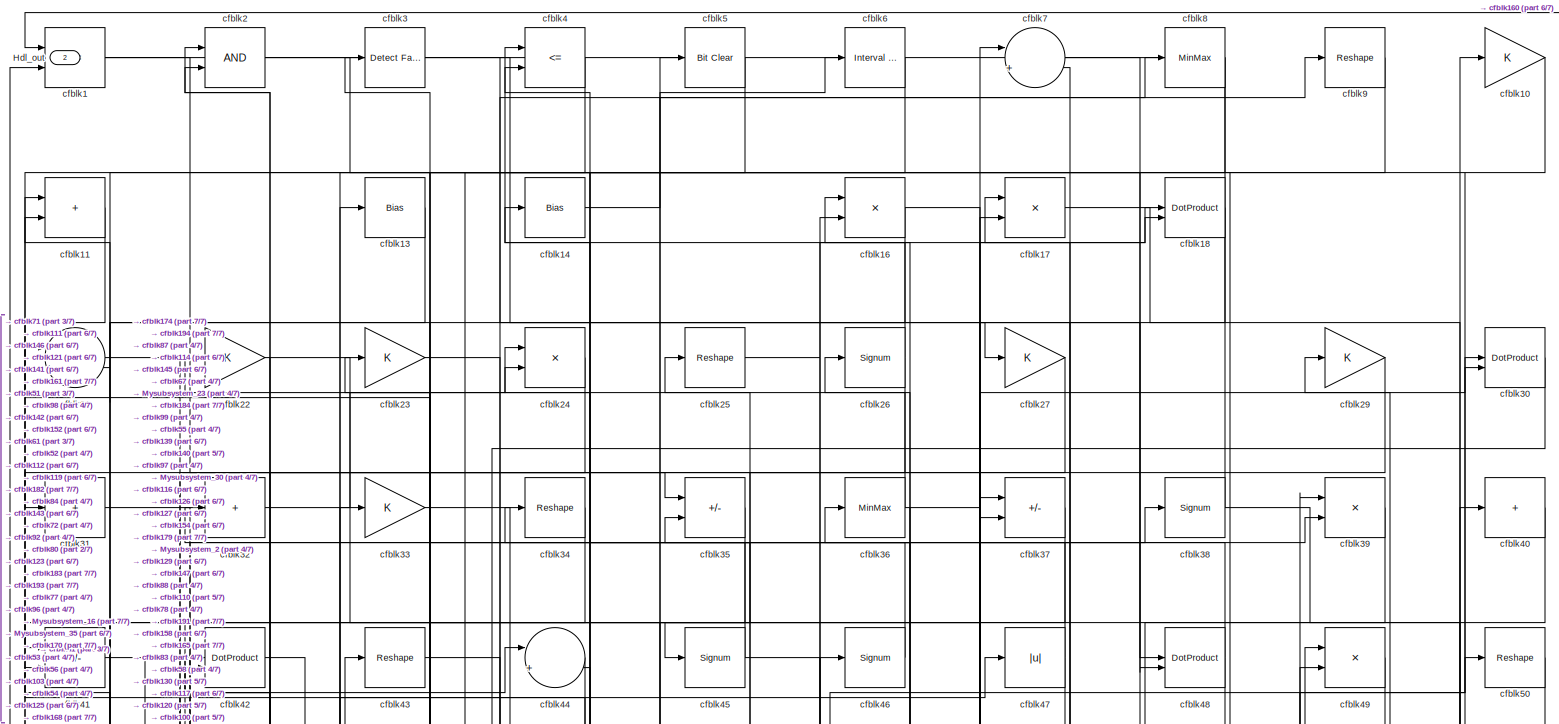
[diagram: root canvas - part 1/7, full width, top band]
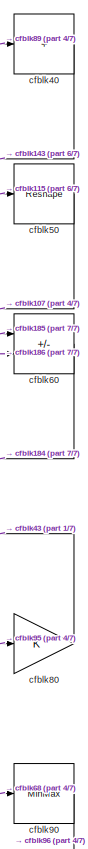
[diagram: root canvas - part 2/7, top right region]
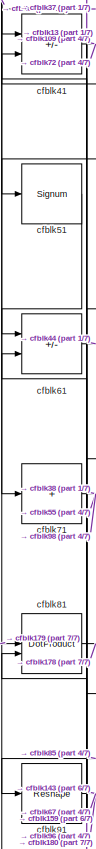
[diagram: root canvas - part 3/7, middle left region]
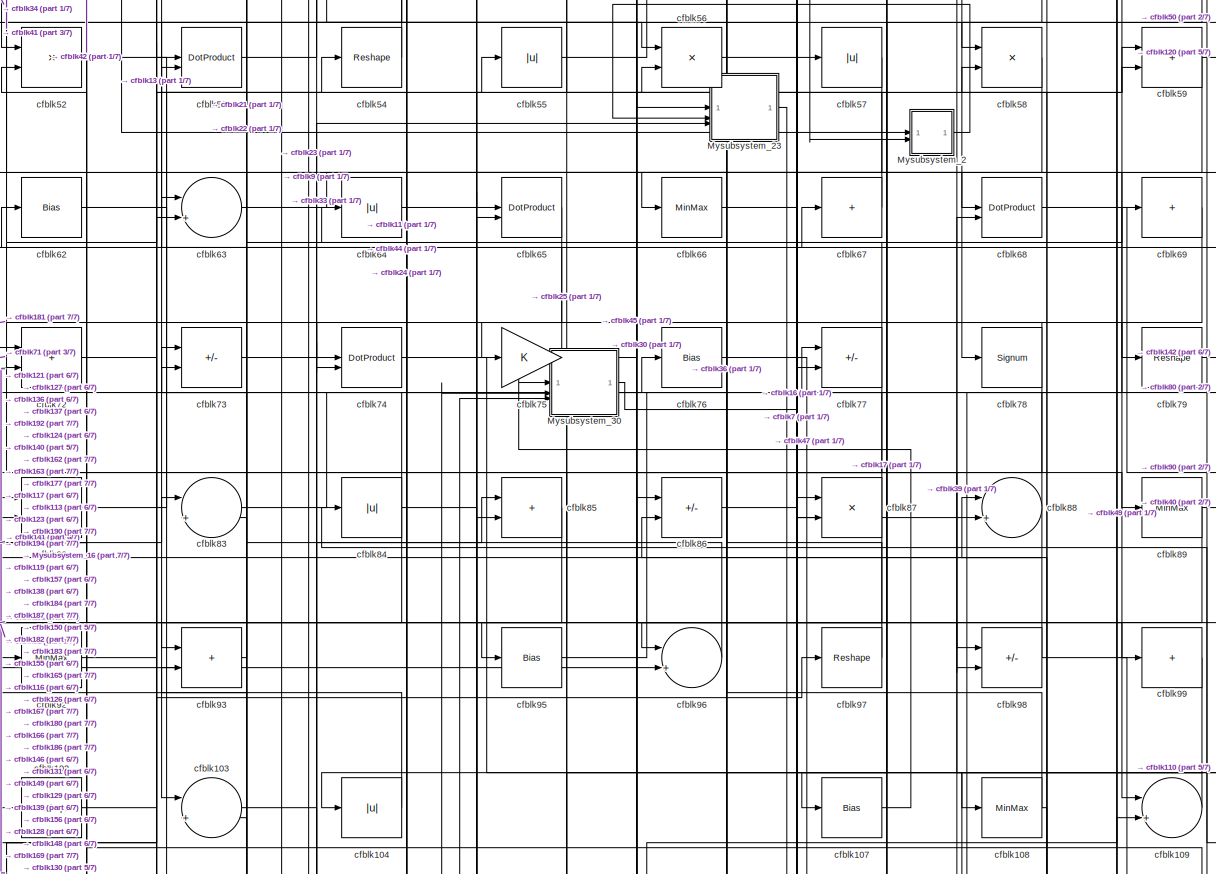
[diagram: root canvas - part 4/7, full width, middle band]
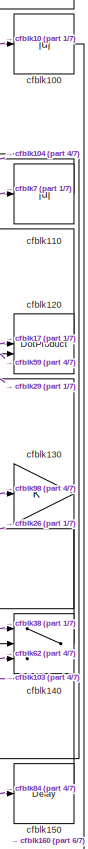
[diagram: root canvas - part 5/7, middle right region]
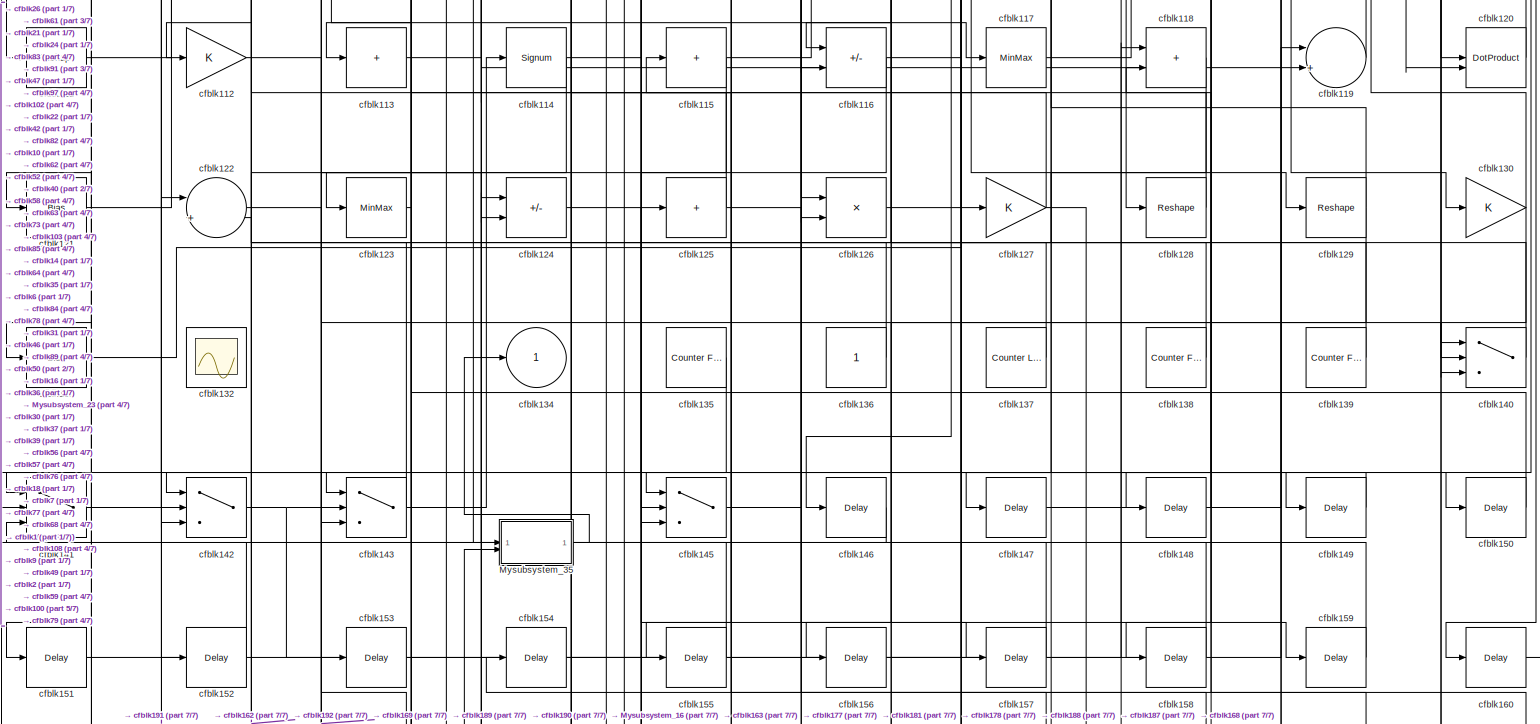
[diagram: root canvas - part 6/7, full width, bottom band]
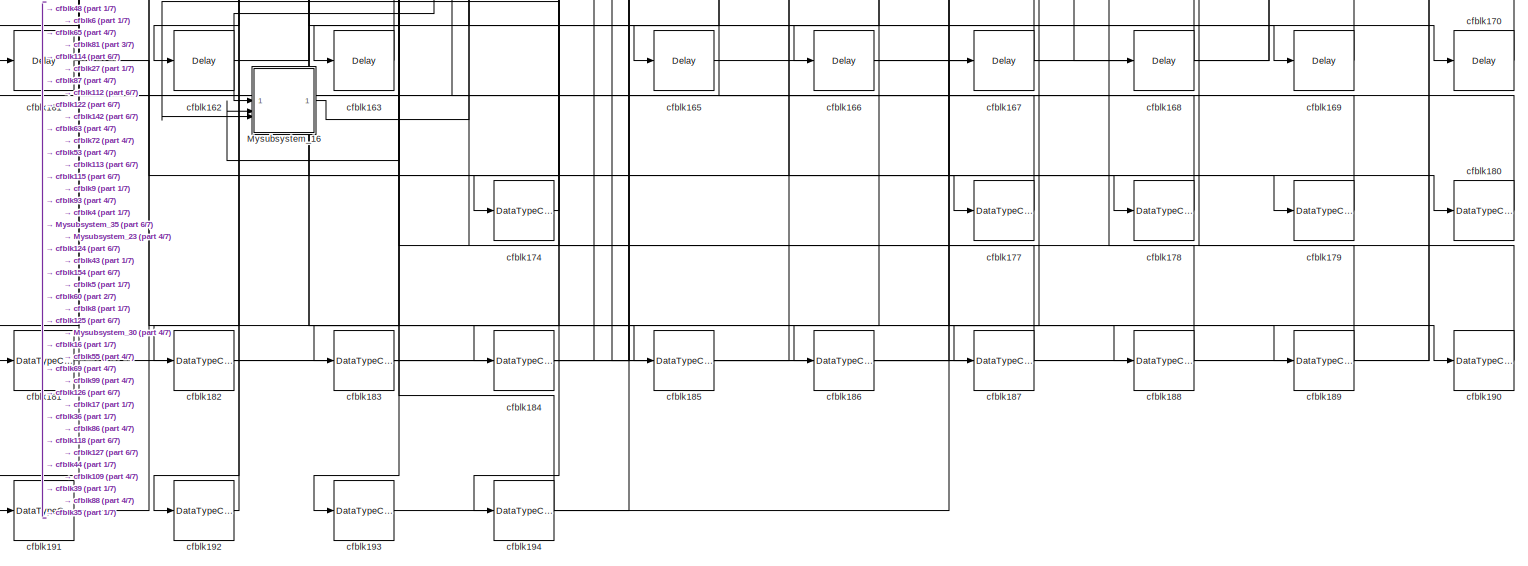
[diagram: root canvas - part 7/7, full width, bottom band]
MODEL slx_56c765ff15bb
KIND model
CONFIG AbsTol = auto
CONFIG EnableMultiTasking = off
CONFIG FixedStep = auto
CONFIG MaxStep = auto
CONFIG MinStep = auto
CONFIG RelTol = 1e-3
CONFIG SampleTimeConstraint = Unconstrained
CONFIG SolverName = VariableStepAuto
CONFIG StartTime = 0.0
CONFIG StopTime = 10.0
BLOCK [Outport] Hdl_out
  OutDataTypeStr = uint8
  Port = 2
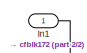
[diagram: Mysubsystem_16 - part 1/2, top right region]
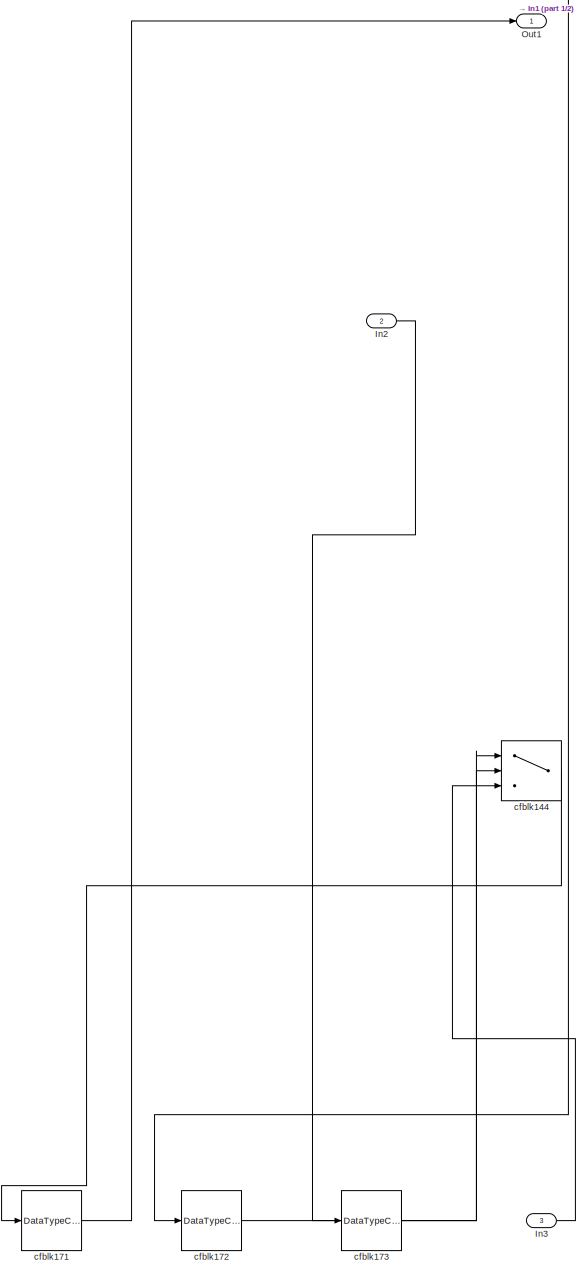
[diagram: Mysubsystem_16 - part 2/2, full width, bottom band]
BLOCK [SubSystem] Mysubsystem_16
  RTWFcnName = Mysubsystem_16
  RTWFcnNameOpts = User specified
  RTWFileNameOpts = Use function name
  RTWSystemCode = Reusable function
  TreatAsAtomicUnit = on
BLOCK [Inport] Mysubsystem_16/In1
BLOCK [Inport] Mysubsystem_16/In2
  Port = 2
BLOCK [Inport] Mysubsystem_16/In3
  Port = 3
BLOCK [Outport] Mysubsystem_16/Out1
BLOCK [Switch] Mysubsystem_16/cfblk144
  InputSameDT = off
  SaturateOnIntegerOverflow = off
BLOCK [DataTypeConversion] Mysubsystem_16/cfblk171
  OutDataTypeStr = uint8
  RndMeth = Floor
  SaturateOnIntegerOverflow = off
BLOCK [DataTypeConversion] Mysubsystem_16/cfblk172
  OutDataTypeStr = uint8
  RndMeth = Floor
  SaturateOnIntegerOverflow = off
BLOCK [DataTypeConversion] Mysubsystem_16/cfblk173
  OutDataTypeStr = uint8
  RndMeth = Floor
  SaturateOnIntegerOverflow = off
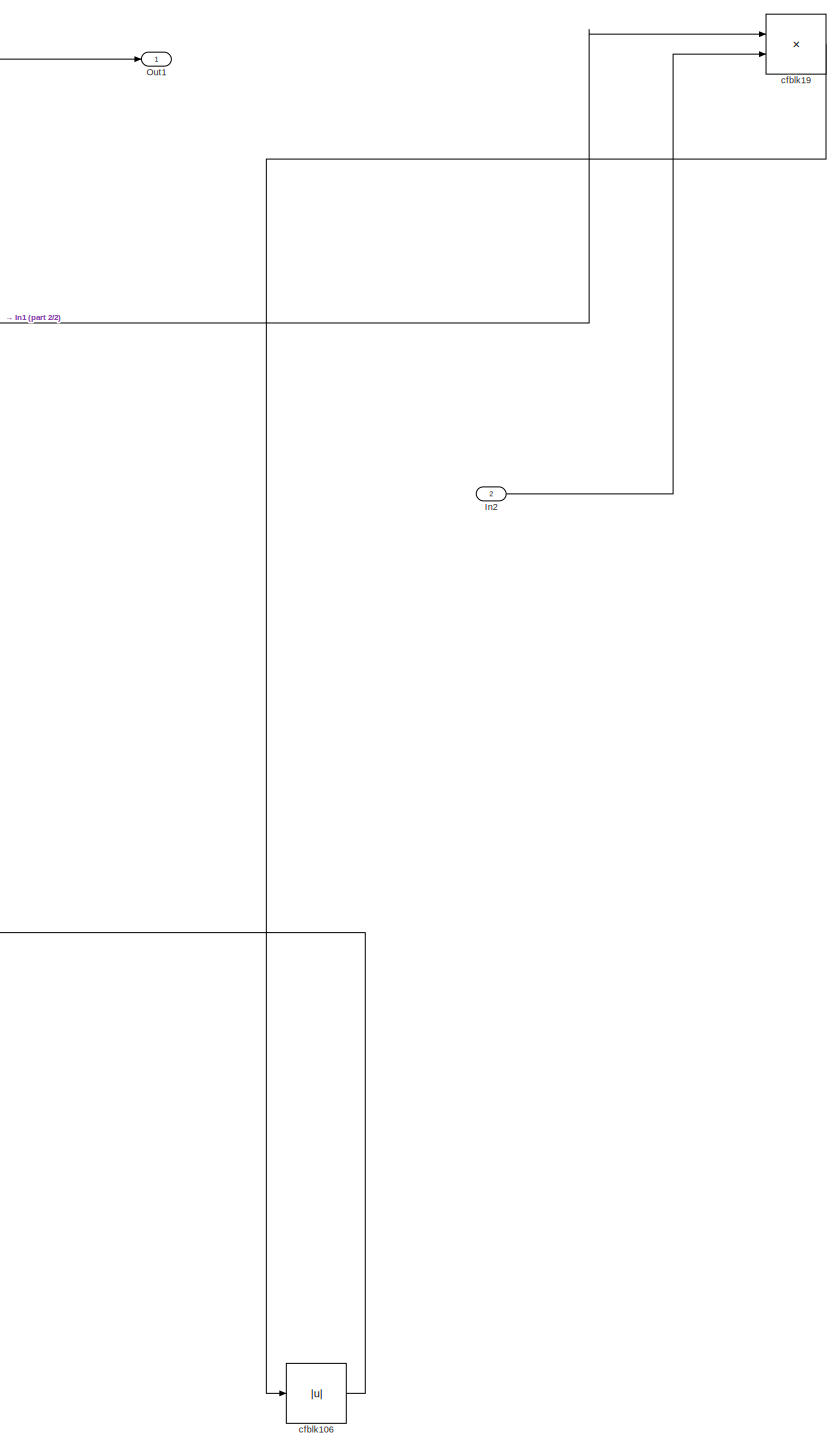
[diagram: Mysubsystem_2 - part 1/2, center side, full height]
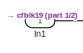
[diagram: Mysubsystem_2 - part 2/2, middle left region]
BLOCK [SubSystem] Mysubsystem_2
  RTWFcnName = Mysubsystem_2
  RTWFcnNameOpts = User specified
  RTWFileNameOpts = Use function name
  RTWSystemCode = Reusable function
  TreatAsAtomicUnit = on
BLOCK [Inport] Mysubsystem_2/In1
BLOCK [Inport] Mysubsystem_2/In2
  Port = 2
BLOCK [Outport] Mysubsystem_2/Out1
BLOCK [Abs] Mysubsystem_2/cfblk106
  SaturateOnIntegerOverflow = off
BLOCK [Product] Mysubsystem_2/cfblk19
  Inputs = */
  RndMeth = Zero
  SaturateOnIntegerOverflow = on
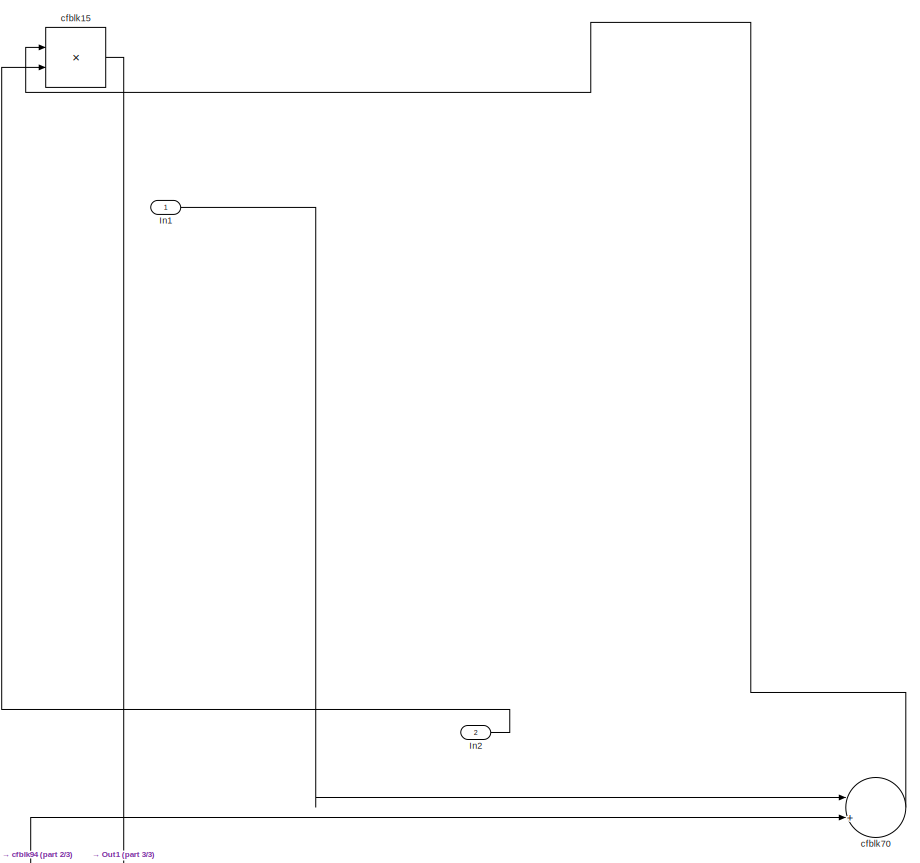
[diagram: Mysubsystem_23 - part 1/3, top center region]
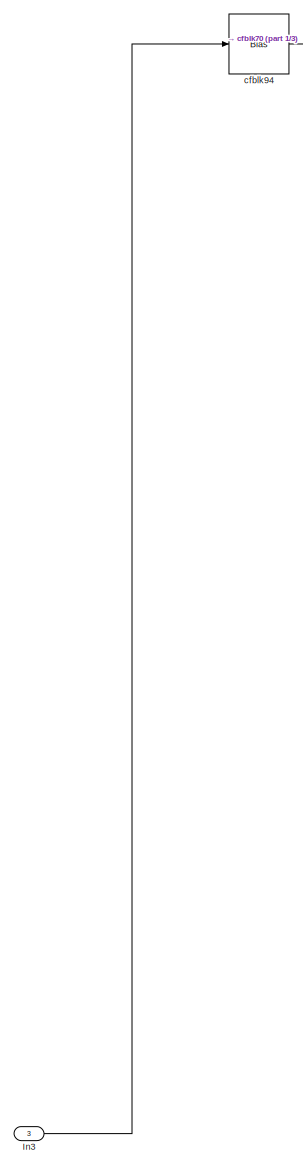
[diagram: Mysubsystem_23 - part 2/3, bottom left region]
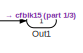
[diagram: Mysubsystem_23 - part 3/3, bottom center region]
BLOCK [SubSystem] Mysubsystem_23
  RTWFcnName = Mysubsystem_23
  RTWFcnNameOpts = User specified
  RTWFileNameOpts = Use function name
  RTWSystemCode = Reusable function
  TreatAsAtomicUnit = on
BLOCK [Inport] Mysubsystem_23/In1
BLOCK [Inport] Mysubsystem_23/In2
  Port = 2
BLOCK [Inport] Mysubsystem_23/In3
  Port = 3
BLOCK [Outport] Mysubsystem_23/Out1
BLOCK [Product] Mysubsystem_23/cfblk15
  Inputs = */
  RndMeth = Zero
  SaturateOnIntegerOverflow = on
BLOCK [Sum] Mysubsystem_23/cfblk70
  Inputs = |++
BLOCK [Bias] Mysubsystem_23/cfblk94
  Bias = 0.0
  SaturateOnIntegerOverflow = off
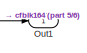
[diagram: Mysubsystem_30 - part 1/6, top center region]
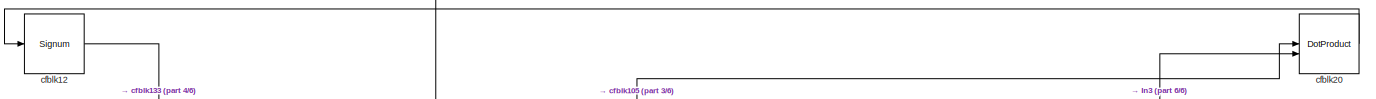
[diagram: Mysubsystem_30 - part 2/6, full width, top band]
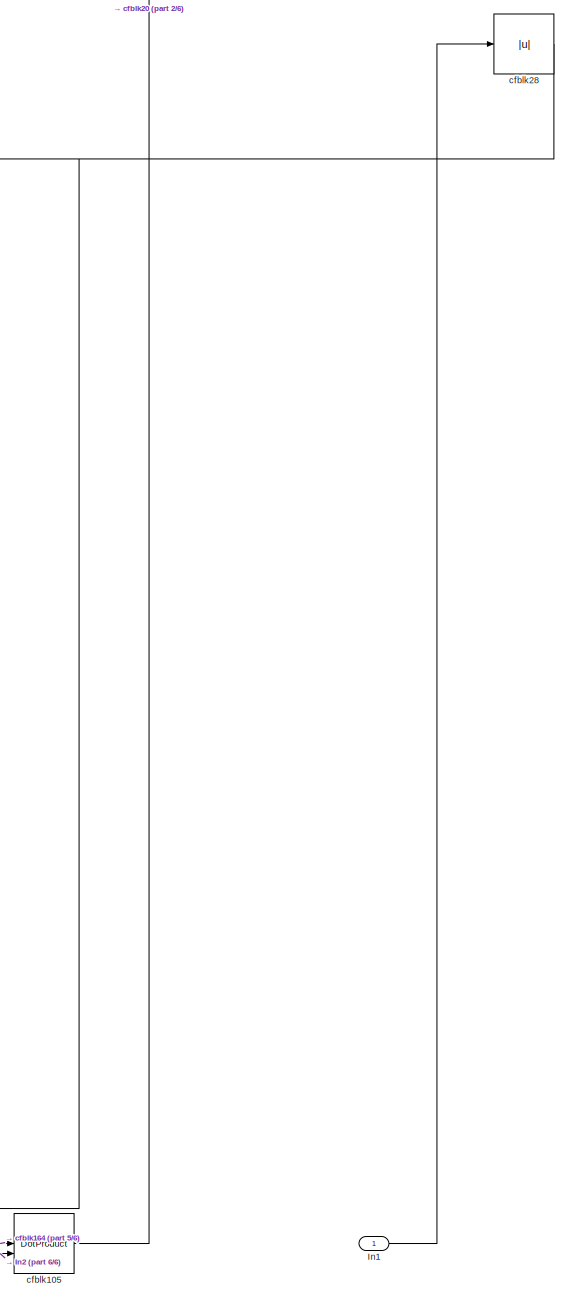
[diagram: Mysubsystem_30 - part 3/6, central region]
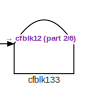
[diagram: Mysubsystem_30 - part 4/6, bottom left region]
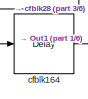
[diagram: Mysubsystem_30 - part 5/6, bottom left region]
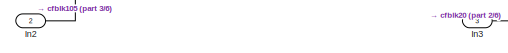
[diagram: Mysubsystem_30 - part 6/6, bottom center region]
BLOCK [SubSystem] Mysubsystem_30
  RTWFcnName = Mysubsystem_30
  RTWFcnNameOpts = User specified
  RTWFileNameOpts = Use function name
  RTWSystemCode = Reusable function
  TreatAsAtomicUnit = on
BLOCK [Inport] Mysubsystem_30/In1
BLOCK [Inport] Mysubsystem_30/In2
  Port = 2
BLOCK [Inport] Mysubsystem_30/In3
  Port = 3
BLOCK [Outport] Mysubsystem_30/Out1
BLOCK [DotProduct] Mysubsystem_30/cfblk105
  OutDataTypeStr = Inherit: Inherit via internal rule
BLOCK [Signum] Mysubsystem_30/cfblk12
BLOCK [Terminator] Mysubsystem_30/cfblk133
BLOCK [Delay] Mysubsystem_30/cfblk164
  InputPortMap = u0
  SampleTime = 1
BLOCK [DotProduct] Mysubsystem_30/cfblk20
  OutDataTypeStr = Inherit: Inherit via internal rule
BLOCK [Abs] Mysubsystem_30/cfblk28
  SaturateOnIntegerOverflow = off
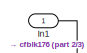
[diagram: Mysubsystem_35 - part 1/3, top right region]
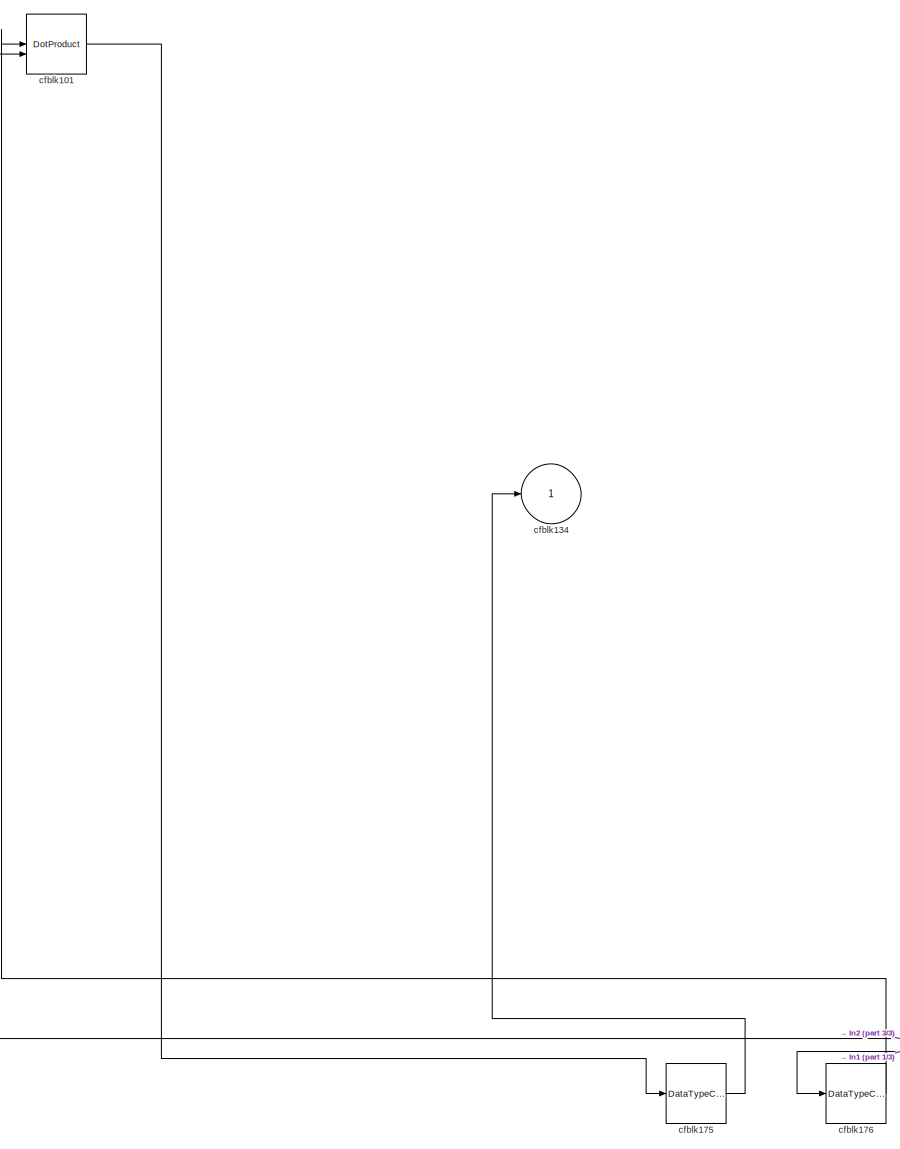
[diagram: Mysubsystem_35 - part 2/3, bottom left region]
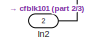
[diagram: Mysubsystem_35 - part 3/3, bottom center region]
BLOCK [SubSystem] Mysubsystem_35
  RTWFcnName = Mysubsystem_35
  RTWFcnNameOpts = User specified
  RTWFileNameOpts = Use function name
  RTWSystemCode = Reusable function
  TreatAsAtomicUnit = on
BLOCK [Inport] Mysubsystem_35/In1
BLOCK [Inport] Mysubsystem_35/In2
  Port = 2
BLOCK [DotProduct] Mysubsystem_35/cfblk101
  OutDataTypeStr = Inherit: Inherit via internal rule
BLOCK [Outport] Mysubsystem_35/cfblk134
  VectorParamsAs1DForOutWhenUnconnected = off
BLOCK [DataTypeConversion] Mysubsystem_35/cfblk175
  OutDataTypeStr = uint8
  RndMeth = Floor
  SaturateOnIntegerOverflow = off
BLOCK [DataTypeConversion] Mysubsystem_35/cfblk176
  OutDataTypeStr = uint8
  RndMeth = Floor
  SaturateOnIntegerOverflow = off
BLOCK [RelationalOperator] cfblk1
  InputSameDT = off
  Operator = <=
  OutDataTypeStr = boolean
BLOCK [Gain] cfblk10
  OutDataTypeStr = uint8
BLOCK [Abs] cfblk100
  OutDataTypeStr = uint8
  SaturateOnIntegerOverflow = off
BLOCK [Reshape] cfblk102
BLOCK [Sum] cfblk103
  Inputs = |++
  OutDataTypeStr = uint8
BLOCK [Abs] cfblk104
  OutDataTypeStr = uint8
  SaturateOnIntegerOverflow = off
BLOCK [Bias] cfblk107
  Bias = 0.0
  SaturateOnIntegerOverflow = off
BLOCK [MinMax] cfblk108
  OutDataTypeStr = uint8
BLOCK [Sum] cfblk109
  Inputs = |++
  OutDataTypeStr = uint8
BLOCK [Sum] cfblk11
  IconShape = rectangular
  OutDataTypeStr = uint8
BLOCK [Abs] cfblk110
  OutDataTypeStr = uint8
  SaturateOnIntegerOverflow = off
BLOCK [Reshape] cfblk111
BLOCK [Gain] cfblk112
  OutDataTypeStr = uint8
BLOCK [Sum] cfblk113
  IconShape = rectangular
  Inputs = +
  OutDataTypeStr = uint8
BLOCK [Signum] cfblk114
BLOCK [Sum] cfblk115
  IconShape = rectangular
  Inputs = +
  OutDataTypeStr = uint8
BLOCK [Sum] cfblk116
  IconShape = rectangular
  Inputs = +-
  OutDataTypeStr = uint8
BLOCK [MinMax] cfblk117
  OutDataTypeStr = uint8
BLOCK [Sum] cfblk118
  IconShape = rectangular
  OutDataTypeStr = uint8
BLOCK [Sum] cfblk119
  Inputs = |++
  OutDataTypeStr = uint8
BLOCK [DotProduct] cfblk120
  OutDataTypeStr = uint8
BLOCK [Bias] cfblk121
  Bias = 0.0
  SaturateOnIntegerOverflow = off
BLOCK [Sum] cfblk122
  Inputs = |++
  OutDataTypeStr = uint8
BLOCK [MinMax] cfblk123
  OutDataTypeStr = uint8
BLOCK [Sum] cfblk124
  IconShape = rectangular
  Inputs = +-
  OutDataTypeStr = uint8
BLOCK [Sum] cfblk125
  IconShape = rectangular
  Inputs = +
  OutDataTypeStr = uint8
BLOCK [Product] cfblk126
  Inputs = */
  OutDataTypeStr = uint8
  RndMeth = Zero
  SaturateOnIntegerOverflow = on
BLOCK [Gain] cfblk127
  OutDataTypeStr = uint8
BLOCK [Reshape] cfblk128
BLOCK [Reshape] cfblk129
BLOCK [Bias] cfblk13
  Bias = 0.0
  SaturateOnIntegerOverflow = off
BLOCK [Gain] cfblk130
  OutDataTypeStr = uint8
BLOCK [Bias] cfblk131
  Bias = 0.0
  SaturateOnIntegerOverflow = off
BLOCK [Scope] cfblk132
  Floating = on
  NumInputPorts = 1
  ScopeSpecificationString = Simulink.scopes.TimeScopeBlockCfg('CurrentConfiguration', extmgr.ConfigurationSet(extmgr.Configuration('Core','General UI',true,'FigureColor',[0.156862745098039 0.156862745098039 0.156862745098039]),extmgr.Configuration('Core','Source UI',true),extmgr.Configuration('Sources','WiredSimulink',true,'DataLoggingVariableName','ScopeData1','DataLoggingSaveFormat','StructureWithTime','DataLoggingLimitDat...<+2713ch>
BLOCK [Outport] cfblk134
  OutDataTypeStr = uint8
  VectorParamsAs1DForOutWhenUnconnected = off
BLOCK [Reference] cfblk135  REF=hdlsllib/Sources/Counter
Free-Running
  SourceBlock = hdlsllib/Sources/Counter\nFree-Running
  SourceType = Counter Free-Running
BLOCK [Constant] cfblk136
  OutDataTypeStr = uint8
  SampleTime = -1
BLOCK [Reference] cfblk137  REF=hdlsllib/Sources/Counter
Limited
  SourceBlock = hdlsllib/Sources/Counter\nLimited
  SourceType = Counter Limited
BLOCK [Reference] cfblk138  REF=hdlsllib/Sources/Counter
Free-Running
  SourceBlock = hdlsllib/Sources/Counter\nFree-Running
  SourceType = Counter Free-Running
BLOCK [Reference] cfblk139  REF=hdlsllib/Sources/Counter
Free-Running
  SourceBlock = hdlsllib/Sources/Counter\nFree-Running
  SourceType = Counter Free-Running
BLOCK [Bias] cfblk14
  Bias = 0.0
  SaturateOnIntegerOverflow = off
BLOCK [Switch] cfblk140
  InputSameDT = off
  OutDataTypeStr = uint8
  SaturateOnIntegerOverflow = off
BLOCK [Switch] cfblk141
  InputSameDT = off
  OutDataTypeStr = uint8
  SaturateOnIntegerOverflow = off
BLOCK [Switch] cfblk142
  InputSameDT = off
  OutDataTypeStr = uint8
  SaturateOnIntegerOverflow = off
BLOCK [Switch] cfblk143
  InputSameDT = off
  OutDataTypeStr = uint8
  SaturateOnIntegerOverflow = off
BLOCK [Switch] cfblk145
  InputSameDT = off
  OutDataTypeStr = uint8
  SaturateOnIntegerOverflow = off
BLOCK [Delay] cfblk146
  InputPortMap = u0
  SampleTime = 1
BLOCK [Delay] cfblk147
  InputPortMap = u0
  SampleTime = 1
BLOCK [Delay] cfblk148
  InputPortMap = u0
  SampleTime = 1
BLOCK [Delay] cfblk149
  InputPortMap = u0
  SampleTime = 1
BLOCK [Delay] cfblk150
  InputPortMap = u0
  SampleTime = 1
BLOCK [Delay] cfblk151
  InputPortMap = u0
  SampleTime = 1
BLOCK [Delay] cfblk152
  InputPortMap = u0
  SampleTime = 1
BLOCK [Delay] cfblk153
  InputPortMap = u0
  SampleTime = 1
BLOCK [Delay] cfblk154
  InputPortMap = u0
  SampleTime = 1
BLOCK [Delay] cfblk155
  InputPortMap = u0
  SampleTime = 1
BLOCK [Delay] cfblk156
  InputPortMap = u0
  SampleTime = 1
BLOCK [Delay] cfblk157
  InputPortMap = u0
  SampleTime = 1
BLOCK [Delay] cfblk158
  InputPortMap = u0
  SampleTime = 1
BLOCK [Delay] cfblk159
  InputPortMap = u0
  SampleTime = 1
BLOCK [Product] cfblk16
  Inputs = */
  OutDataTypeStr = uint8
  RndMeth = Zero
  SaturateOnIntegerOverflow = on
BLOCK [Delay] cfblk160
  InputPortMap = u0
  SampleTime = 1
BLOCK [Delay] cfblk161
  InputPortMap = u0
  SampleTime = 1
BLOCK [Delay] cfblk162
  InputPortMap = u0
  SampleTime = 1
BLOCK [Delay] cfblk163
  InputPortMap = u0
  SampleTime = 1
BLOCK [Delay] cfblk165
  InputPortMap = u0
  SampleTime = 1
BLOCK [Delay] cfblk166
  InputPortMap = u0
  SampleTime = 1
BLOCK [Delay] cfblk167
  InputPortMap = u0
  SampleTime = 1
BLOCK [Delay] cfblk168
  InputPortMap = u0
  SampleTime = 1
BLOCK [Delay] cfblk169
  InputPortMap = u0
  SampleTime = 1
BLOCK [Product] cfblk17
  Inputs = */
  OutDataTypeStr = uint8
  RndMeth = Zero
  SaturateOnIntegerOverflow = on
BLOCK [Delay] cfblk170
  InputPortMap = u0
  SampleTime = 1
BLOCK [DataTypeConversion] cfblk174
  OutDataTypeStr = uint8
  RndMeth = Floor
  SaturateOnIntegerOverflow = off
BLOCK [DataTypeConversion] cfblk177
  OutDataTypeStr = uint8
  RndMeth = Floor
  SaturateOnIntegerOverflow = off
BLOCK [DataTypeConversion] cfblk178
  OutDataTypeStr = uint8
  RndMeth = Floor
  SaturateOnIntegerOverflow = off
BLOCK [DataTypeConversion] cfblk179
  OutDataTypeStr = uint8
  RndMeth = Floor
  SaturateOnIntegerOverflow = off
BLOCK [DotProduct] cfblk18
  OutDataTypeStr = uint8
BLOCK [DataTypeConversion] cfblk180
  OutDataTypeStr = uint8
  RndMeth = Floor
  SaturateOnIntegerOverflow = off
BLOCK [DataTypeConversion] cfblk181
  OutDataTypeStr = uint8
  RndMeth = Floor
  SaturateOnIntegerOverflow = off
BLOCK [DataTypeConversion] cfblk182
  OutDataTypeStr = uint8
  RndMeth = Floor
  SaturateOnIntegerOverflow = off
BLOCK [DataTypeConversion] cfblk183
  OutDataTypeStr = uint8
  RndMeth = Floor
  SaturateOnIntegerOverflow = off
BLOCK [DataTypeConversion] cfblk184
  OutDataTypeStr = uint8
  RndMeth = Floor
  SaturateOnIntegerOverflow = off
BLOCK [DataTypeConversion] cfblk185
  OutDataTypeStr = uint8
  RndMeth = Floor
  SaturateOnIntegerOverflow = off
BLOCK [DataTypeConversion] cfblk186
  OutDataTypeStr = uint8
  RndMeth = Floor
  SaturateOnIntegerOverflow = off
BLOCK [DataTypeConversion] cfblk187
  OutDataTypeStr = uint8
  RndMeth = Floor
  SaturateOnIntegerOverflow = off
BLOCK [DataTypeConversion] cfblk188
  OutDataTypeStr = uint8
  RndMeth = Floor
  SaturateOnIntegerOverflow = off
BLOCK [DataTypeConversion] cfblk189
  OutDataTypeStr = uint8
  RndMeth = Floor
  SaturateOnIntegerOverflow = off
BLOCK [DataTypeConversion] cfblk190
  OutDataTypeStr = uint8
  RndMeth = Floor
  SaturateOnIntegerOverflow = off
BLOCK [DataTypeConversion] cfblk191
  OutDataTypeStr = uint8
  RndMeth = Floor
  SaturateOnIntegerOverflow = off
BLOCK [DataTypeConversion] cfblk192
  OutDataTypeStr = uint8
  RndMeth = Floor
  SaturateOnIntegerOverflow = off
BLOCK [DataTypeConversion] cfblk193
  OutDataTypeStr = uint8
  RndMeth = Floor
  SaturateOnIntegerOverflow = off
BLOCK [DataTypeConversion] cfblk194
  OutDataTypeStr = uint8
  RndMeth = Floor
  SaturateOnIntegerOverflow = off
BLOCK [Logic] cfblk2
  AllPortsSameDT = off
  OutDataTypeStr = boolean
BLOCK [Sum] cfblk21
  Inputs = |++
  OutDataTypeStr = uint8
BLOCK [Gain] cfblk22
  OutDataTypeStr = uint8
BLOCK [Gain] cfblk23
  OutDataTypeStr = uint8
BLOCK [Product] cfblk24
  Inputs = */
  OutDataTypeStr = uint8
  RndMeth = Zero
  SaturateOnIntegerOverflow = on
BLOCK [Reshape] cfblk25
BLOCK [Signum] cfblk26
BLOCK [Gain] cfblk27
  OutDataTypeStr = uint8
BLOCK [Gain] cfblk29
  OutDataTypeStr = uint8
BLOCK [Reference] cfblk3  REF=hdlsllib/Logic and Bit
Operations/Detect Fall
Negative
  SourceBlock = hdlsllib/Logic and Bit\nOperations/Detect Fall\nNegative
  SourceType = Detect Fall Negative
BLOCK [DotProduct] cfblk30
  OutDataTypeStr = uint8
BLOCK [Sum] cfblk31
  IconShape = rectangular
  Inputs = +
  OutDataTypeStr = uint8
BLOCK [Sum] cfblk32
  IconShape = rectangular
  Inputs = +
  OutDataTypeStr = uint8
BLOCK [Gain] cfblk33
  OutDataTypeStr = uint8
BLOCK [Reshape] cfblk34
BLOCK [Sum] cfblk35
  IconShape = rectangular
  Inputs = +-
  OutDataTypeStr = uint8
BLOCK [MinMax] cfblk36
  OutDataTypeStr = uint8
BLOCK [Sum] cfblk37
  IconShape = rectangular
  Inputs = +-
  OutDataTypeStr = uint8
BLOCK [Signum] cfblk38
BLOCK [Product] cfblk39
  Inputs = */
  OutDataTypeStr = uint8
  RndMeth = Zero
  SaturateOnIntegerOverflow = on
BLOCK [RelationalOperator] cfblk4
  InputSameDT = off
  Operator = <=
  OutDataTypeStr = boolean
BLOCK [Sum] cfblk40
  IconShape = rectangular
  Inputs = +
  OutDataTypeStr = uint8
BLOCK [Sum] cfblk41
  IconShape = rectangular
  Inputs = +-
  OutDataTypeStr = uint8
BLOCK [DotProduct] cfblk42
  OutDataTypeStr = uint8
BLOCK [Reshape] cfblk43
BLOCK [Sum] cfblk44
  Inputs = |++
  OutDataTypeStr = uint8
BLOCK [Signum] cfblk45
BLOCK [Signum] cfblk46
BLOCK [Abs] cfblk47
  OutDataTypeStr = uint8
  SaturateOnIntegerOverflow = off
BLOCK [DotProduct] cfblk48
  OutDataTypeStr = uint8
BLOCK [Product] cfblk49
  Inputs = */
  OutDataTypeStr = uint8
  RndMeth = Zero
  SaturateOnIntegerOverflow = on
BLOCK [Reference] cfblk5  REF=simulink/Logic and Bit
Operations/Bit Clear
  LibrarySourceBlock = hdlsllib/Logic and Bit\nOperations/Bit Clear
  SourceBlock = simulink/Logic and Bit\nOperations/Bit Clear
  SourceType = Bit Clear
BLOCK [Reshape] cfblk50
BLOCK [Signum] cfblk51
BLOCK [Product] cfblk52
  Inputs = */
  OutDataTypeStr = uint8
  RndMeth = Zero
  SaturateOnIntegerOverflow = on
BLOCK [DotProduct] cfblk53
  OutDataTypeStr = uint8
BLOCK [Reshape] cfblk54
BLOCK [Abs] cfblk55
  OutDataTypeStr = uint8
  SaturateOnIntegerOverflow = off
BLOCK [Product] cfblk56
  Inputs = */
  OutDataTypeStr = uint8
  RndMeth = Zero
  SaturateOnIntegerOverflow = on
BLOCK [Abs] cfblk57
  OutDataTypeStr = uint8
  SaturateOnIntegerOverflow = off
BLOCK [Product] cfblk58
  Inputs = */
  OutDataTypeStr = uint8
  RndMeth = Zero
  SaturateOnIntegerOverflow = on
BLOCK [Sum] cfblk59
  IconShape = rectangular
  OutDataTypeStr = uint8
BLOCK [Reference] cfblk6  REF=hdlsllib/Logic and Bit
Operations/Interval Test
  SourceBlock = hdlsllib/Logic and Bit\nOperations/Interval Test
  SourceType = Interval Test
BLOCK [Sum] cfblk60
  IconShape = rectangular
  Inputs = +-
  OutDataTypeStr = uint8
BLOCK [Sum] cfblk61
  IconShape = rectangular
  Inputs = +-
  OutDataTypeStr = uint8
BLOCK [Bias] cfblk62
  Bias = 0.0
  SaturateOnIntegerOverflow = off
BLOCK [Sum] cfblk63
  Inputs = |++
  OutDataTypeStr = uint8
BLOCK [Abs] cfblk64
  OutDataTypeStr = uint8
  SaturateOnIntegerOverflow = off
BLOCK [DotProduct] cfblk65
  OutDataTypeStr = uint8
BLOCK [MinMax] cfblk66
  OutDataTypeStr = uint8
BLOCK [Sum] cfblk67
  IconShape = rectangular
  Inputs = +
  OutDataTypeStr = uint8
BLOCK [DotProduct] cfblk68
  OutDataTypeStr = uint8
BLOCK [Sum] cfblk69
  IconShape = rectangular
  Inputs = +
  OutDataTypeStr = uint8
BLOCK [Sum] cfblk7
  Inputs = |++
  OutDataTypeStr = uint8
BLOCK [Sum] cfblk71
  IconShape = rectangular
  Inputs = +
  OutDataTypeStr = uint8
BLOCK [Sum] cfblk72
  IconShape = rectangular
  OutDataTypeStr = uint8
BLOCK [Sum] cfblk73
  IconShape = rectangular
  Inputs = +-
  OutDataTypeStr = uint8
BLOCK [DotProduct] cfblk74
  OutDataTypeStr = uint8
BLOCK [Gain] cfblk75
  OutDataTypeStr = uint8
BLOCK [Bias] cfblk76
  Bias = 0.0
  SaturateOnIntegerOverflow = off
BLOCK [Sum] cfblk77
  IconShape = rectangular
  Inputs = +-
  OutDataTypeStr = uint8
BLOCK [Signum] cfblk78
BLOCK [Reshape] cfblk79
BLOCK [MinMax] cfblk8
  OutDataTypeStr = uint8
BLOCK [Gain] cfblk80
  OutDataTypeStr = uint8
BLOCK [DotProduct] cfblk81
  OutDataTypeStr = uint8
BLOCK [Sum] cfblk82
  IconShape = rectangular
  OutDataTypeStr = uint8
BLOCK [Sum] cfblk83
  Inputs = |++
  OutDataTypeStr = uint8
BLOCK [Abs] cfblk84
  OutDataTypeStr = uint8
  SaturateOnIntegerOverflow = off
BLOCK [Sum] cfblk85
  IconShape = rectangular
  OutDataTypeStr = uint8
BLOCK [Sum] cfblk86
  IconShape = rectangular
  Inputs = +-
  OutDataTypeStr = uint8
BLOCK [Product] cfblk87
  Inputs = */
  OutDataTypeStr = uint8
  RndMeth = Zero
  SaturateOnIntegerOverflow = on
BLOCK [Sum] cfblk88
  Inputs = |++
  OutDataTypeStr = uint8
BLOCK [MinMax] cfblk89
  OutDataTypeStr = uint8
BLOCK [Reshape] cfblk9
BLOCK [MinMax] cfblk90
  OutDataTypeStr = uint8
BLOCK [Reshape] cfblk91
BLOCK [MinMax] cfblk92
  OutDataTypeStr = uint8
BLOCK [Sum] cfblk93
  IconShape = rectangular
  OutDataTypeStr = uint8
BLOCK [Bias] cfblk95
  Bias = 0.0
  SaturateOnIntegerOverflow = off
BLOCK [Sum] cfblk96
  Inputs = |++
  OutDataTypeStr = uint8
BLOCK [Reshape] cfblk97
BLOCK [Sum] cfblk98
  IconShape = rectangular
  Inputs = +-
  OutDataTypeStr = uint8
BLOCK [Sum] cfblk99
  IconShape = rectangular
  Inputs = +
  OutDataTypeStr = uint8
LINE Mysubsystem_16/In1:1 -> Mysubsystem_16/cfblk172:1
LINE Mysubsystem_16/In2:1 -> Mysubsystem_16/cfblk173:1
LINE Mysubsystem_16/In3:1 -> Mysubsystem_16/cfblk144:3
LINE Mysubsystem_16/cfblk144:1 -> Mysubsystem_16/cfblk171:1
LINE Mysubsystem_16/cfblk171:1 -> Mysubsystem_16/Out1:1
LINE Mysubsystem_16/cfblk172:1 -> Mysubsystem_16/cfblk144:1
LINE Mysubsystem_16/cfblk173:1 -> Mysubsystem_16/cfblk144:2
LINE Mysubsystem_16:1 -> Mysubsystem_23:3
LINE Mysubsystem_2/In1:1 -> Mysubsystem_2/cfblk19:1
LINE Mysubsystem_2/In2:1 -> Mysubsystem_2/cfblk19:2
LINE Mysubsystem_2/cfblk106:1 -> Mysubsystem_2/Out1:1
LINE Mysubsystem_2/cfblk19:1 -> Mysubsystem_2/cfblk106:1
LINE Mysubsystem_23/In1:1 -> Mysubsystem_23/cfblk70:1
LINE Mysubsystem_23/In2:1 -> Mysubsystem_23/cfblk15:2
LINE Mysubsystem_23/In3:1 -> Mysubsystem_23/cfblk94:1
LINE Mysubsystem_23/cfblk15:1 -> Mysubsystem_23/Out1:1
LINE Mysubsystem_23/cfblk70:1 -> Mysubsystem_23/cfblk15:1
LINE Mysubsystem_23/cfblk94:1 -> Mysubsystem_23/cfblk70:2
LINE Mysubsystem_23:1 -> cfblk146:1
LINE Mysubsystem_2:1 -> Mysubsystem_23:2
LINE Mysubsystem_30/In1:1 -> Mysubsystem_30/cfblk28:1
LINE Mysubsystem_30/In2:1 -> Mysubsystem_30/cfblk105:2
LINE Mysubsystem_30/In3:1 -> Mysubsystem_30/cfblk20:2
LINE Mysubsystem_30/cfblk105:1 -> Mysubsystem_30/cfblk20:1
LINE Mysubsystem_30/cfblk12:1 -> Mysubsystem_30/cfblk133:1
LINE Mysubsystem_30/cfblk164:1 -> Mysubsystem_30/Out1:1
LINE Mysubsystem_30/cfblk20:1 -> Mysubsystem_30/cfblk12:1
NET Mysubsystem_30/cfblk28:1 -> Mysubsystem_30/cfblk105:1, Mysubsystem_30/cfblk164:1
LINE Mysubsystem_30:1 -> cfblk7:1
LINE Mysubsystem_35/In1:1 -> Mysubsystem_35/cfblk176:1
LINE Mysubsystem_35/In2:1 -> Mysubsystem_35/cfblk101:2
LINE Mysubsystem_35/cfblk101:1 -> Mysubsystem_35/cfblk175:1
LINE Mysubsystem_35/cfblk175:1 -> Mysubsystem_35/cfblk134:1
LINE Mysubsystem_35/cfblk176:1 -> Mysubsystem_35/cfblk101:1
LINE Mysubsystem_35:1 -> cfblk134:1
LINE cfblk100:1 -> cfblk160:1
LINE cfblk102:1 -> cfblk59:1
LINE cfblk103:1 -> cfblk119:2
LINE cfblk104:1 -> cfblk92:1
LINE cfblk107:1 -> Mysubsystem_30:1
NET cfblk108:1 -> cfblk148:1, cfblk72:2
LINE cfblk109:1 -> cfblk108:1
NET cfblk10:1 -> cfblk100:1, cfblk143:2
LINE cfblk110:1 -> cfblk104:1
LINE cfblk111:1 -> cfblk47:1
LINE cfblk112:1 -> cfblk169:1
NET cfblk113:1 -> Mysubsystem_16:2, cfblk85:1
NET cfblk114:1 -> cfblk162:1, cfblk6:1
NET cfblk115:1 -> cfblk163:1, cfblk50:1
NET cfblk116:1 -> cfblk145:2, cfblk39:2
LINE cfblk117:1 -> cfblk10:1
LINE cfblk118:1 -> cfblk187:1
LINE cfblk119:1 -> cfblk2:1
LINE cfblk11:1 -> cfblk31:1
LINE cfblk120:1 -> cfblk84:1
LINE cfblk121:1 -> cfblk97:1
LINE cfblk122:1 -> cfblk190:1
LINE cfblk123:1 -> cfblk73:1
LINE cfblk124:1 -> cfblk157:1
NET cfblk125:1 -> cfblk14:1, cfblk159:1
NET cfblk126:1 -> cfblk188:1, cfblk30:2
NET cfblk127:1 -> cfblk168:1, cfblk82:1
LINE cfblk128:1 -> cfblk63:1
NET cfblk129:1 -> cfblk156:1, cfblk7:2
NET cfblk130:1 -> cfblk140:2, cfblk29:1
LINE cfblk131:1 -> cfblk57:1
LINE cfblk135:1 -> cfblk145:1
LINE cfblk136:1 -> cfblk102:1
LINE cfblk137:1 -> cfblk82:2
LINE cfblk138:1 -> cfblk64:1
NET cfblk139:1 -> cfblk16:1, cfblk77:1
LINE cfblk13:1 -> cfblk51:1
LINE cfblk140:1 -> cfblk26:1
LINE cfblk141:1 -> cfblk83:1
NET cfblk142:1 -> cfblk153:1, cfblk189:1
NET cfblk143:1 -> cfblk114:1, cfblk42:2
LINE cfblk145:1 -> cfblk46:1
LINE cfblk146:1 -> cfblk1:2
LINE cfblk147:1 -> cfblk49:2
LINE cfblk148:1 -> cfblk58:2
LINE cfblk149:1 -> cfblk141:2
LINE cfblk14:1 -> cfblk8:1
LINE cfblk150:1 -> cfblk103:2
LINE cfblk151:1 -> cfblk85:2
LINE cfblk152:1 -> cfblk141:3
LINE cfblk153:1 -> cfblk119:1
LINE cfblk154:1 -> cfblk37:1
LINE cfblk155:1 -> cfblk83:2
LINE cfblk156:1 -> cfblk68:2
LINE cfblk157:1 -> cfblk74:1
LINE cfblk158:1 -> cfblk2:2
LINE cfblk159:1 -> cfblk61:2
LINE cfblk160:1 -> cfblk1:1
LINE cfblk161:1 -> cfblk185:1
LINE cfblk162:1 -> cfblk63:2
LINE cfblk163:1 -> cfblk53:1
LINE cfblk165:1 -> cfblk39:1
LINE cfblk166:1 -> cfblk109:2
LINE cfblk167:1 -> cfblk86:1
LINE cfblk168:1 -> cfblk44:2
LINE cfblk169:1 -> cfblk88:1
NET cfblk16:1 -> cfblk123:1, cfblk21:2, cfblk77:2
LINE cfblk170:1 -> cfblk35:2
LINE cfblk174:1 -> Mysubsystem_16:3
LINE cfblk177:1 -> Mysubsystem_35:2
LINE cfblk178:1 -> cfblk115:1
LINE cfblk179:1 -> cfblk81:1
LINE cfblk17:1 -> cfblk120:1
LINE cfblk180:1 -> cfblk81:2
NET cfblk181:1 -> cfblk125:1, cfblk167:1
LINE cfblk182:1 -> cfblk65:1
LINE cfblk183:1 -> cfblk65:2
NET cfblk184:1 -> Mysubsystem_30:2, cfblk16:2
LINE cfblk185:1 -> cfblk60:1
LINE cfblk186:1 -> cfblk60:2
NET cfblk187:1 -> Mysubsystem_30:3, cfblk154:1
LINE cfblk188:1 -> cfblk118:1
LINE cfblk189:1 -> cfblk118:2
NET cfblk18:1 -> cfblk147:1, cfblk37:2
NET cfblk190:1 -> cfblk124:1, cfblk53:2
LINE cfblk191:1 -> cfblk122:1
LINE cfblk192:1 -> cfblk122:2
LINE cfblk193:1 -> cfblk5:1
NET cfblk194:1 -> cfblk17:2, cfblk93:2
LINE cfblk1:1 -> cfblk35:1
LINE cfblk21:1 -> cfblk152:1
NET cfblk22:1 -> cfblk112:1, cfblk127:1
LINE cfblk23:1 -> cfblk56:1
LINE cfblk24:1 -> cfblk142:3
NET cfblk25:1 -> Mysubsystem_23:1, cfblk18:1
NET cfblk26:1 -> cfblk111:1, cfblk4:2
LINE cfblk27:1 -> cfblk182:1
LINE cfblk29:1 -> cfblk45:1
LINE cfblk2:1 -> cfblk48:1
LINE cfblk30:1 -> Mysubsystem_35:1
LINE cfblk31:1 -> cfblk126:1
LINE cfblk32:1 -> cfblk24:1
LINE cfblk33:1 -> cfblk87:1
LINE cfblk34:1 -> cfblk52:1
NET cfblk35:1 -> cfblk121:1, cfblk141:1, cfblk145:3
NET cfblk36:1 -> cfblk116:1, cfblk179:1, cfblk18:2, cfblk3:1
LINE cfblk37:1 -> cfblk41:1
NET cfblk38:1 -> Hdl_out:1, cfblk140:1
LINE cfblk39:1 -> cfblk78:1
NET cfblk3:1 -> cfblk27:1, cfblk48:2
LINE cfblk40:1 -> cfblk143:1
NET cfblk41:1 -> cfblk109:1, cfblk72:1
LINE cfblk42:1 -> Mysubsystem_2:1
LINE cfblk43:1 -> cfblk170:1
LINE cfblk44:1 -> cfblk103:1
NET cfblk45:1 -> cfblk4:1, cfblk99:1
LINE cfblk46:1 -> cfblk32:1
NET cfblk47:1 -> Mysubsystem_2:2, cfblk34:1
NET cfblk48:1 -> cfblk191:1, cfblk23:1
LINE cfblk49:1 -> cfblk58:1
LINE cfblk4:1 -> Mysubsystem_16:1
LINE cfblk50:1 -> cfblk107:1
LINE cfblk51:1 -> cfblk61:1
LINE cfblk52:1 -> cfblk117:1
LINE cfblk53:1 -> cfblk9:1
LINE cfblk54:1 -> cfblk11:1
NET cfblk55:1 -> cfblk180:1, cfblk30:1
NET cfblk56:1 -> cfblk149:1, cfblk88:2
LINE cfblk57:1 -> cfblk66:1
LINE cfblk58:1 -> cfblk113:1
NET cfblk59:1 -> cfblk120:2, cfblk131:1
LINE cfblk5:1 -> cfblk194:1
LINE cfblk60:1 -> cfblk184:1
LINE cfblk61:1 -> cfblk44:1
NET cfblk62:1 -> cfblk124:2, cfblk140:3, cfblk74:2
LINE cfblk63:1 -> cfblk68:1
LINE cfblk64:1 -> cfblk56:2
LINE cfblk65:1 -> cfblk181:1
LINE cfblk66:1 -> cfblk89:1
LINE cfblk67:1 -> cfblk25:1
LINE cfblk68:1 -> cfblk90:1
LINE cfblk69:1 -> cfblk186:1
LINE cfblk6:1 -> cfblk161:1
NET cfblk71:1 -> cfblk38:1, cfblk55:1, cfblk98:1, cfblk98:2
NET cfblk72:1 -> cfblk13:1, cfblk177:1
LINE cfblk73:1 -> cfblk79:1
LINE cfblk74:1 -> cfblk128:1
NET cfblk75:1 -> cfblk59:2, cfblk62:1, cfblk95:1
LINE cfblk76:1 -> cfblk129:1
NET cfblk77:1 -> cfblk116:2, cfblk21:1
NET cfblk78:1 -> cfblk142:2, cfblk155:1, cfblk75:1, cfblk87:2
LINE cfblk79:1 -> cfblk142:1
LINE cfblk7:1 -> cfblk110:1
LINE cfblk80:1 -> cfblk43:1
LINE cfblk81:1 -> cfblk178:1
NET cfblk82:1 -> cfblk54:1, cfblk76:1
LINE cfblk83:1 -> cfblk49:1
NET cfblk84:1 -> cfblk150:1, cfblk151:1, cfblk42:1
LINE cfblk85:1 -> cfblk91:1
LINE cfblk86:1 -> cfblk69:1
NET cfblk87:1 -> cfblk192:1, cfblk24:2
NET cfblk88:1 -> cfblk17:1, cfblk86:2
NET cfblk89:1 -> cfblk126:2, cfblk40:1
NET cfblk8:1 -> cfblk174:1, cfblk193:1, cfblk71:1
LINE cfblk90:1 -> cfblk96:1
NET cfblk91:1 -> cfblk143:3, cfblk41:2, cfblk67:1, cfblk96:2
NET cfblk92:1 -> cfblk33:1, cfblk52:2
LINE cfblk93:1 -> cfblk73:2
LINE cfblk95:1 -> cfblk80:1
LINE cfblk96:1 -> cfblk22:1
NET cfblk97:1 -> cfblk36:1, cfblk93:1
NET cfblk98:1 -> cfblk11:2, cfblk130:1
NET cfblk99:1 -> cfblk165:1, cfblk166:1
NET cfblk9:1 -> cfblk158:1, cfblk183:1
note: NET lines group one-source signal fan-out (src -> all destinations, sorted); 1:1 wires keep LINE
